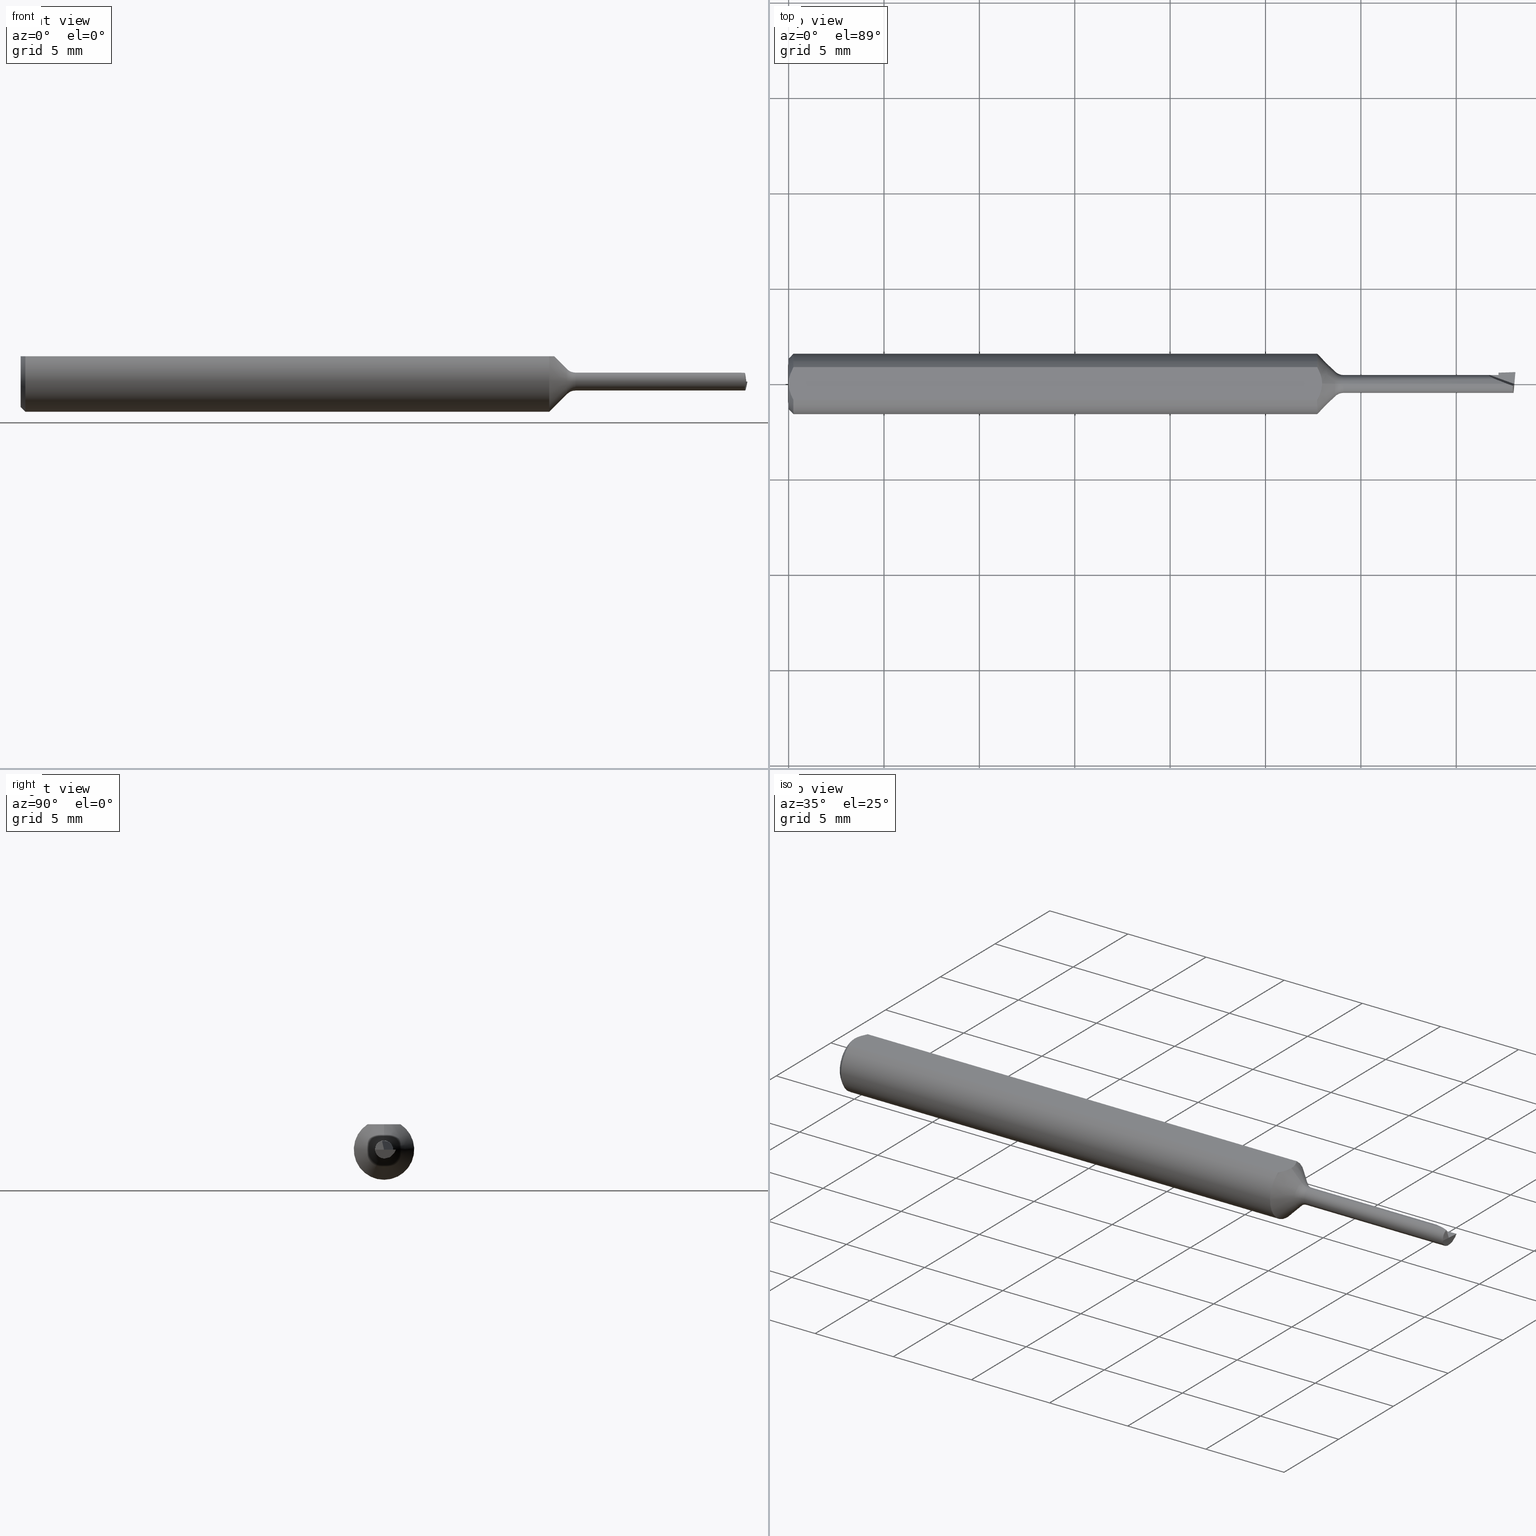
[diagram: canonical four-view strip — front | top / right | iso, engineering-drawing reading convention]
A machine part, canonical four-view strip (front | top / right | iso — engineering-drawing reading convention). The complete STEP part file that produces these views, byte-faithful:
ISO-10303-21;
HEADER;
FILE_DESCRIPTION (( 'STEP AP203' ),
    '1' );
FILE_NAME ('210058-MB045350.STEP',
    '2025-01-30T19:02:24',
    ( '' ),
    ( '' ),
    'SwSTEP 2.0',
    'SolidWorks 2024',
    '' );
FILE_SCHEMA (( 'CONFIG_CONTROL_DESIGN' ));
ENDSEC;

DATA;
#1 = COORDINATED_UNIVERSAL_TIME_OFFSET ( 8, 0, .BEHIND. ) ;
#2 = CARTESIAN_POINT ( 'NONE',  ( 0.000000000000000000, 0.000000000000000000, 0.000000000000000000 ) ) ;
#3 = CIRCLE ( 'NONE', #607, 0.02499999999999992159 ) ;
#4 = EDGE_LOOP ( 'NONE', ( #600, #554, #164, #559, #532 ) ) ;
#5 = EDGE_CURVE ( 'NONE', #185, #605, #112, .T. ) ;
#6 = DIRECTION ( 'NONE',  ( 0.000000000000000000, 0.000000000000000000, 1.000000000000000000 ) ) ;
#7 = DIRECTION ( 'NONE',  ( 1.000000000000000000, 0.000000000000000000, 0.000000000000000000 ) ) ;
#8 = ORIENTED_EDGE ( 'NONE', *, *, #378, .F. ) ;
#9 = CC_DESIGN_APPROVAL ( #469, ( #389 ) ) ;
#10 = CARTESIAN_POINT ( 'NONE',  ( 0.000000000000000000, 0.000000000000000000, -0.05235000000000033377 ) ) ;
#11 = CIRCLE ( 'NONE', #541, 0.02499999999999992159 ) ;
#12 = VERTEX_POINT ( 'NONE', #15 ) ;
#13 = APPROVAL_DATE_TIME ( #513, #102 ) ;
#14 = CARTESIAN_POINT ( 'NONE',  ( 1.495246590703220857, 2.265596578422608431E-18, -0.01850000000000004072 ) ) ;
#15 = CARTESIAN_POINT ( 'NONE',  ( 1.091150000000000286, 0.03386738844375220686, 0.05235000000000000070 ) ) ;
#16 = PERSON_AND_ORGANIZATION ( #228, #508 ) ;
#17 = EDGE_CURVE ( 'NONE', #448, #288, #462, .T. ) ;
#18 = ORIENTED_EDGE ( 'NONE', *, *, #280, .T. ) ;
#19 = CARTESIAN_POINT ( 'NONE',  ( 1.487126106453287244, -0.001380280959563401832, 0.01850000000000004072 ) ) ;
#20 = CARTESIAN_POINT ( 'NONE',  ( 1.145355339059327404, 2.265596578422613824E-18, -0.01850000000000008235 ) ) ;
#21 = CARTESIAN_POINT ( 'NONE',  ( 1.491015288325890253, -0.002751962849509072186, 0.01834616788330077283 ) ) ;
#22 = FACE_OUTER_BOUND ( 'NONE', #591, .T. ) ;
#23 = VERTEX_POINT ( 'NONE', #612 ) ;
#24 = LINE ( 'NONE', #328, #480 ) ;
#25 = PLANE ( 'NONE',  #491 ) ;
#26 = CARTESIAN_POINT ( 'NONE',  ( 1.091150000000000286, 0.03386738844375220686, 0.05235000000000000070 ) ) ;
#27 = CARTESIAN_POINT ( 'NONE',  ( 0.000000000000000000, 0.000000000000000000, 0.000000000000000000 ) ) ;
#28 = CARTESIAN_POINT ( 'NONE',  ( 0.000000000000000000, 0.000000000000000000, 0.05235000000000033377 ) ) ;
#29 = CC_DESIGN_APPROVAL ( #102, ( #540 ) ) ;
#30 = ORIENTED_EDGE ( 'NONE', *, *, #75, .T. ) ;
#31 = CARTESIAN_POINT ( 'NONE',  ( -1.070637973615595603E-15, -0.005965286321711177862, 0.05235000000000002152 ) ) ;
#32 = CC_DESIGN_DATE_AND_TIME_ASSIGNMENT ( #601, #563, ( #540 ) ) ;
#33 = ADVANCED_FACE ( 'NONE', ( #136 ), #293, .F. ) ;
#34 = ORIENTED_EDGE ( 'NONE', *, *, #622, .T. ) ;
#35 = CARTESIAN_POINT ( 'NONE',  ( 1.494465960141844629, -0.01288082332125575075, 0.01604535613734159663 ) ) ;
#36 = ORIENTED_EDGE ( 'NONE', *, *, #615, .F. ) ;
#37 = CARTESIAN_POINT ( 'NONE',  ( 0.001063697276021357847, 0.01189177144351693735, 0.05235000000000001458 ) ) ;
#38 = DIRECTION ( 'NONE',  ( 0.000000000000000000, 0.000000000000000000, -1.000000000000000000 ) ) ;
#39 = ORIENTED_EDGE ( 'NONE', *, *, #5, .T. ) ;
#40 = ADVANCED_FACE ( 'NONE', ( #623 ), #546, .T. ) ;
#41 = APPROVAL_DATE_TIME ( #338, #469 ) ;
#42 = CARTESIAN_POINT ( 'NONE',  ( 0.000000000000000000, -0.03386738844375220686, 0.05235000000000000070 ) ) ;
#43 = B_SPLINE_CURVE_WITH_KNOTS ( 'NONE', 3,
 ( #26, #625, #400, #639, #486, #296 ),
 .UNSPECIFIED., .F., .F.,
 ( 4, 2, 4 ),
 ( 0.002018861167849228706, 0.002467762199066008549, 0.002916663230282787959 ),
 .UNSPECIFIED. ) ;
#44 = ORIENTED_EDGE ( 'NONE', *, *, #399, .T. ) ;
#45 = DIRECTION ( 'NONE',  ( 1.000000000000000000, 0.000000000000000000, 0.000000000000000000 ) ) ;
#46 = CARTESIAN_POINT ( 'NONE',  ( 1.465000000000000080, 0.02204888731940269492, -0.01324462778634774400 ) ) ;
#47 = ORIENTED_EDGE ( 'NONE', *, *, #447, .T. ) ;
#48 = APPROVAL_DATE_TIME ( #493, #127 ) ;
#49 = VECTOR ( 'NONE', #182, 39.37007874015748143 ) ;
#50 = CARTESIAN_POINT ( 'NONE',  ( 1.496237987468385322, -0.01850000000000001990, 2.346737396167180672E-16 ) ) ;
#51 = ORIENTED_EDGE ( 'NONE', *, *, #137, .T. ) ;
#52 = CARTESIAN_POINT ( 'NONE',  ( 0.004671770759546769666, 0.02323517832780105236, 0.05235000000000002152 ) ) ;
#53 = FACE_OUTER_BOUND ( 'NONE', #82, .T. ) ;
#54 = ORIENTED_EDGE ( 'NONE', *, *, #180, .T. ) ;
#55 = DIRECTION ( 'NONE',  ( -0.1593925713349118589, -0.7010550863643484343, -0.6950653020299035756 ) ) ;
#56 = ORIENTED_EDGE ( 'NONE', *, *, #641, .T. ) ;
#57 =( BOUNDED_CURVE ( )  B_SPLINE_CURVE ( 3, ( #58, #507, #119, #363 ),
 .UNSPECIFIED., .F., .F. ) 
 B_SPLINE_CURVE_WITH_KNOTS ( ( 4, 4 ),
 ( 5.466285219765468995, 5.728084607564617237 ),
 .UNSPECIFIED. ) 
 CURVE ( )  GEOMETRIC_REPRESENTATION_ITEM ( )  RATIONAL_B_SPLINE_CURVE ( ( 1.000000000000000000, 0.9942965742492069214, 0.9942965742492069214, 1.000000000000000000 ) ) 
 REPRESENTATION_ITEM ( '' )  );
#58 = CARTESIAN_POINT ( 'NONE',  ( 1.495754431199804557, 0.004788152334396648772, -0.01786962778634774984 ) ) ;
#59 = CARTESIAN_POINT ( 'NONE',  ( 1.496684692676496731, 0.01221299988732022293, -0.01588014588061767429 ) ) ;
#60 = LOCAL_TIME ( 11, 2, 24.00000000000000000, #269 ) ;
#61 = ADVANCED_FACE ( 'NONE', ( #132 ), #325, .F. ) ;
#62 = DIRECTION ( 'NONE',  ( -1.000000000000000000, -0.000000000000000000, -0.000000000000000000 ) ) ;
#63 = ORIENTED_EDGE ( 'NONE', *, *, #223, .F. ) ;
#64 =( GEOMETRIC_REPRESENTATION_CONTEXT ( 3 ) GLOBAL_UNCERTAINTY_ASSIGNED_CONTEXT ( ( #116 ) ) GLOBAL_UNIT_ASSIGNED_CONTEXT ( ( #348, #303, #496 ) ) REPRESENTATION_CONTEXT ( 'NONE', 'WORKASPACE' ) );
#65 = CARTESIAN_POINT ( 'NONE',  ( 1.446998957439700861, 0.01850000000000003725, -4.483286445232968331E-18 ) ) ;
#66 = CARTESIAN_POINT ( 'NONE',  ( 1.101150000000000295, -1.477730522838633192E-21, 0.05235000000000001458 ) ) ;
#67 = PRODUCT ( '210058-MB045350', '210058-MB045350', '', ( #103 ) ) ;
#68 = DIRECTION ( 'NONE',  ( 0.000000000000000000, -0.4228298219691071225, -0.9062091048171900809 ) ) ;
#69 = CIRCLE ( 'NONE', #128, 0.01850000000000008235 ) ;
#70 = CARTESIAN_POINT ( 'NONE',  ( 1.465000000000000080, 0.01849999999999999908, 0.000000000000000000 ) ) ;
#71 = EDGE_LOOP ( 'NONE', ( #425, #618, #188, #97 ) ) ;
#72 = DIRECTION ( 'NONE',  ( 0.000000000000000000, 0.9659258262890682012, 0.2588190451025212391 ) ) ;
#73 = CC_DESIGN_SECURITY_CLASSIFICATION ( #540, ( #389 ) ) ;
#74 = CARTESIAN_POINT ( 'NONE',  ( 1.145355339059327404, 0.000000000000000000, 0.000000000000000000 ) ) ;
#75 = EDGE_CURVE ( 'NONE', #196, #495, #282, .T. ) ;
#76 = CARTESIAN_POINT ( 'NONE',  ( 0.01000000000000840841, -0.03386738844395137393, 0.05235000000000001458 ) ) ;
#77 = DIRECTION ( 'NONE',  ( 1.000000000000000000, 0.000000000000000000, 0.000000000000000000 ) ) ;
#78 = LINE ( 'NONE', #234, #139 ) ;
#79 = AXIS2_PLACEMENT_3D ( 'NONE', #619, #616, #467 ) ;
#80 = DIRECTION ( 'NONE',  ( -0.1627401076574647998, -0.4218543546513220388, -0.8919386530593645945 ) ) ;
#81 = ADVANCED_FACE ( 'NONE', ( #574 ), #417, .T. ) ;
#82 = EDGE_LOOP ( 'NONE', ( #167, #335, #337, #437, #492, #209 ) ) ;
#83 = DIRECTION ( 'NONE',  ( -1.000000000000000000, -0.000000000000000000, -0.000000000000000000 ) ) ;
#84 = VERTEX_POINT ( 'NONE', #219 ) ;
#85 = CARTESIAN_POINT ( 'NONE',  ( 0.000000000000000000, 0.000000000000000000, 0.05235000000000033377 ) ) ;
#86 = CARTESIAN_POINT ( 'NONE',  ( 1.145355339059327404, 0.000000000000000000, 0.04350000000000000394 ) ) ;
#87 = ADVANCED_FACE ( 'NONE', ( #22 ), #189, .T. ) ;
#88 = EDGE_LOOP ( 'NONE', ( #30, #512, #598, #465 ) ) ;
#89 = CIRCLE ( 'NONE', #432, 0.05235000000000033377 ) ;
#90 = B_SPLINE_CURVE_WITH_KNOTS ( 'NONE', 3,
 ( #66, #626, #568, #181, #276, #472 ),
 .UNSPECIFIED., .F., .F.,
 ( 4, 2, 4 ),
 ( 0.002916663230282787959, 0.003365861382119245907, 0.003815059533955703856 ),
 .UNSPECIFIED. ) ;
#91 = FACE_OUTER_BOUND ( 'NONE', #88, .T. ) ;
#92 = ORIENTED_EDGE ( 'NONE', *, *, #199, .F. ) ;
#93 = CC_DESIGN_DATE_AND_TIME_ASSIGNMENT ( #254, #385, ( #216 ) ) ;
#94 = PERSON_AND_ORGANIZATION_ROLE ( 'creator' ) ;
#95 = CARTESIAN_POINT ( 'NONE',  ( 1.127677669529663751, 0.000000000000000000, 0.000000000000000000 ) ) ;
#96 = CONICAL_SURFACE ( 'NONE', #384, 0.05235000000000033377, 0.7853981633974376209 ) ;
#97 = ORIENTED_EDGE ( 'NONE', *, *, #407, .F. ) ;
#98 = LENGTH_MEASURE_WITH_UNIT ( LENGTH_MEASURE( 0.02539999999999999897 ), #246 );
#99 = LINE ( 'NONE', #42, #351 ) ;
#100 = ORIENTED_EDGE ( 'NONE', *, *, #237, .T. ) ;
#101 =( BOUNDED_CURVE ( )  B_SPLINE_CURVE ( 3, ( #406, #267, #459, #65 ),
 .UNSPECIFIED., .F., .F. ) 
 B_SPLINE_CURVE_WITH_KNOTS ( ( 4, 4 ),
 ( 4.990162771046300350, 6.560959097841199572 ),
 .UNSPECIFIED. ) 
 CURVE ( )  GEOMETRIC_REPRESENTATION_ITEM ( )  RATIONAL_B_SPLINE_CURVE ( ( 1.000000000000000000, 0.8047378541243643824, 0.8047378541243643824, 1.000000000000000000 ) ) 
 REPRESENTATION_ITEM ( '' )  );
#102 = APPROVAL ( #158, 'UNSPECIFIED' ) ;
#103 = MECHANICAL_CONTEXT ( 'NONE', #594, 'mechanical' ) ;
#104 = AXIS2_PLACEMENT_3D ( 'NONE', #203, #339, #149 ) ;
#105 = DIRECTION ( 'NONE',  ( 4.188400406518391045E-17, 1.150753554054429375E-16, -1.000000000000000000 ) ) ;
#106 = EDGE_LOOP ( 'NONE', ( #295, #253, #244, #642, #39, #241, #341 ) ) ;
#107 = CARTESIAN_POINT ( 'NONE',  ( 1.497855625440970062, -1.031336641982391536E-05, 2.046381266477860700E-16 ) ) ;
#108 = VECTOR ( 'NONE', #266, 39.37007874015748854 ) ;
#109 = EDGE_LOOP ( 'NONE', ( #92, #608, #54, #388 ) ) ;
#110 = VECTOR ( 'NONE', #526, 39.37007874015748143 ) ;
#111 = CARTESIAN_POINT ( 'NONE',  ( 1.145355339059327404, 0.000000000000000000, 0.000000000000000000 ) ) ;
#112 = LINE ( 'NONE', #59, #108 ) ;
#113 = EDGE_CURVE ( 'NONE', #635, #405, #202, .T. ) ;
#114 = LOCAL_TIME ( 11, 2, 24.00000000000000000, #1 ) ;
#115 = SHAPE_DEFINITION_REPRESENTATION ( #569, #369 ) ;
#116 = UNCERTAINTY_MEASURE_WITH_UNIT (LENGTH_MEASURE( 1.000000000000000082E-05 ), #348, 'distance_accuracy_value', 'NONE');
#117 = CARTESIAN_POINT ( 'NONE',  ( 0.7984117945685827999, 3.886970232290855934E-33, -3.377760788655366709E-17 ) ) ;
#118 = CARTESIAN_POINT ( 'NONE',  ( 1.494709121747062275, -0.01850000000000016562, -0.01083704909609766072 ) ) ;
#119 = CARTESIAN_POINT ( 'NONE',  ( 1.495388239854692269, 0.001619057209963984268, -0.01850000000000003378 ) ) ;
#120 = DIRECTION ( 'NONE',  ( 0.9993908270190960952, 0.03489949670248750080, -0.000000000000000000 ) ) ;
#121 = TOROIDAL_SURFACE ( 'NONE', #258, 0.04350000000000000394, 0.02499999999999992159 ) ;
#122 = CARTESIAN_POINT ( 'NONE',  ( 1.460024366919236094, 0.02310402013190050036, -1.572938430745744944E-18 ) ) ;
#123 = ADVANCED_FACE ( 'NONE', ( #317 ), #577, .F. ) ;
#124 = PLANE ( 'NONE',  #324 ) ;
#125 = ORIENTED_EDGE ( 'NONE', *, *, #631, .F. ) ;
#126 = DIRECTION ( 'NONE',  ( -1.000000000000000000, -0.000000000000000000, -0.000000000000000000 ) ) ;
#127 = APPROVAL ( #201, 'UNSPECIFIED' ) ;
#128 = AXIS2_PLACEMENT_3D ( 'NONE', #545, #494, #251 ) ;
#129 = DIRECTION ( 'NONE',  ( -1.000000000000000000, -0.000000000000000000, -0.000000000000000000 ) ) ;
#130 = ORIENTED_EDGE ( 'NONE', *, *, #570, .T. ) ;
#131 = LINE ( 'NONE', #138, #416 ) ;
#132 = FACE_OUTER_BOUND ( 'NONE', #444, .T. ) ;
#133 = CIRCLE ( 'NONE', #525, 0.01850000000000008235 ) ;
#134 = ORIENTED_EDGE ( 'NONE', *, *, #231, .F. ) ;
#135 = DIRECTION ( 'NONE',  ( 0.000000000000000000, 0.000000000000000000, 1.000000000000000000 ) ) ;
#136 = FACE_OUTER_BOUND ( 'NONE', #106, .T. ) ;
#137 = EDGE_CURVE ( 'NONE', #150, #376, #133, .T. ) ;
#138 = CARTESIAN_POINT ( 'NONE',  ( 2.815371162439451627E-33, 0.01850000000000004072, -6.508939666095427711E-17 ) ) ;
#139 = VECTOR ( 'NONE', #236, 39.37007874015748143 ) ;
#140 = ORIENTED_EDGE ( 'NONE', *, *, #418, .F. ) ;
#141 = LINE ( 'NONE', #575, #411 ) ;
#142 = ORIENTED_EDGE ( 'NONE', *, *, #299, .T. ) ;
#143 = EDGE_CURVE ( 'NONE', #23, #194, #287, .T. ) ;
#144 = ORIENTED_EDGE ( 'NONE', *, *, #290, .T. ) ;
#145 = CALENDAR_DATE ( 2025, 30, 1 ) ;
#146 = LINE ( 'NONE', #46, #274 ) ;
#147 = VERTEX_POINT ( 'NONE', #424 ) ;
#148 = CARTESIAN_POINT ( 'NONE',  ( -1.099542139246802830E-15, 0.005954997531773979953, 0.05235000000000002152 ) ) ;
#149 = DIRECTION ( 'NONE',  ( 0.000000000000000000, 0.000000000000000000, 1.000000000000000000 ) ) ;
#150 = VERTEX_POINT ( 'NONE', #20 ) ;
#151 = DIRECTION ( 'NONE',  ( 1.000000000000000000, 0.000000000000000000, 0.000000000000000000 ) ) ;
#152 = CARTESIAN_POINT ( 'NONE',  ( 1.465000000000000080, 0.02001162981448263017, -0.006999999999999996676 ) ) ;
#153 = EDGE_LOOP ( 'NONE', ( #332, #547, #36, #585, #298, #347 ) ) ;
#154 = EDGE_CURVE ( 'NONE', #84, #356, #90, .T. ) ;
#155 =( BOUNDED_CURVE ( )  B_SPLINE_CURVE ( 3, ( #176, #35, #370, #230 ),
 .UNSPECIFIED., .F., .F. ) 
 B_SPLINE_CURVE_WITH_KNOTS ( ( 4, 4 ),
 ( 5.951448363857583246, 7.298880934359467609 ),
 .UNSPECIFIED. ) 
 CURVE ( )  GEOMETRIC_REPRESENTATION_ITEM ( )  RATIONAL_B_SPLINE_CURVE ( ( 1.000000000000000000, 0.8543389983611018312, 0.8543389983611018312, 1.000000000000000000 ) ) 
 REPRESENTATION_ITEM ( '' )  );
#156 = LINE ( 'NONE', #435, #305 ) ;
#157 = ORIENTED_EDGE ( 'NONE', *, *, #340, .F. ) ;
#158 = APPROVAL_STATUS ( 'not_yet_approved' ) ;
#159 = DIRECTION ( 'NONE',  ( -1.000000000000000000, -0.000000000000000000, -0.000000000000000000 ) ) ;
#160 = EDGE_LOOP ( 'NONE', ( #140, #259, #433, #173 ) ) ;
#161 = FACE_OUTER_BOUND ( 'NONE', #343, .T. ) ;
#162 = AXIS2_PLACEMENT_3D ( 'NONE', #70, #617, #272 ) ;
#163 = ADVANCED_FACE ( 'NONE', ( #374 ), #25, .F. ) ;
#164 = ORIENTED_EDGE ( 'NONE', *, *, #399, .F. ) ;
#165 = CARTESIAN_POINT ( 'NONE',  ( 0.000000000000000000, 0.000000000000000000, 0.000000000000000000 ) ) ;
#166 = CC_DESIGN_PERSON_AND_ORGANIZATION_ASSIGNMENT ( #441, #552, ( #67 ) ) ;
#167 = ORIENTED_EDGE ( 'NONE', *, *, #378, .T. ) ;
#168 = VECTOR ( 'NONE', #366, 39.37007874015748854 ) ;
#169 = CARTESIAN_POINT ( 'NONE',  ( 1.405776579097274936, 0.03350371870230225285, -4.483286445232968331E-18 ) ) ;
#170 = CARTESIAN_POINT ( 'NONE',  ( 0.009999999999999887451, 0.000000000000000000, 0.000000000000000000 ) ) ;
#171 = LINE ( 'NONE', #573, #499 ) ;
#172 = DIRECTION ( 'NONE',  ( 0.9396926207859126468, -0.3420201433256567780, 0.000000000000000000 ) ) ;
#173 = ORIENTED_EDGE ( 'NONE', *, *, #143, .F. ) ;
#174 = CARTESIAN_POINT ( 'NONE',  ( 1.483333815684383605, 0.000000000000000000, 0.01850000000000004072 ) ) ;
#175 = CARTESIAN_POINT ( 'NONE',  ( 1.460138284237282980, 0.01984185495899845955, -0.006999999999999996676 ) ) ;
#176 = CARTESIAN_POINT ( 'NONE',  ( 1.494952902551172302, -0.004097954674002875219, 0.01804042038007484111 ) ) ;
#177 = AXIS2_PLACEMENT_3D ( 'NONE', #165, #264, #261 ) ;
#178 = DIRECTION ( 'NONE',  ( 0.000000000000000000, 0.000000000000000000, -1.000000000000000000 ) ) ;
#179 = CARTESIAN_POINT ( 'NONE',  ( 0.000000000000000000, 0.000000000000000000, 0.000000000000000000 ) ) ;
#180 = EDGE_CURVE ( 'NONE', #588, #376, #3, .T. ) ;
#181 = CARTESIAN_POINT ( 'NONE',  ( 1.096482645487524055, -0.02321992653401847018, 0.05235000000000001458 ) ) ;
#182 = DIRECTION ( 'NONE',  ( -0.7071067811865477948, 0.000000000000000000, 0.7071067811865472397 ) ) ;
#183 = FACE_OUTER_BOUND ( 'NONE', #315, .T. ) ;
#184 = VECTOR ( 'NONE', #346, 39.37007874015748854 ) ;
#185 = VERTEX_POINT ( 'NONE', #420 ) ;
#186 = ADVANCED_FACE ( 'NONE', ( #572 ), #124, .T. ) ;
#187 = CARTESIAN_POINT ( 'NONE',  ( 1.500296196177055563, 0.02788553779562382914, 3.030643867971292100E-16 ) ) ;
#188 = ORIENTED_EDGE ( 'NONE', *, *, #447, .F. ) ;
#189 = CONICAL_SURFACE ( 'NONE', #558, 0.02582233047033644438, 0.7853981633974479459 ) ;
#190 = CALENDAR_DATE ( 2025, 30, 1 ) ;
#191 = ADVANCED_FACE ( 'NONE', ( #597 ), #583, .T. ) ;
#192 = AXIS2_PLACEMENT_3D ( 'NONE', #422, #473, #419 ) ;
#193 = LINE ( 'NONE', #386, #604 ) ;
#194 = VERTEX_POINT ( 'NONE', #390 ) ;
#195 = CARTESIAN_POINT ( 'NONE',  ( 1.460138284237282980, 0.01984185495899845955, -0.006999999999999996676 ) ) ;
#196 = VERTEX_POINT ( 'NONE', #152 ) ;
#197 = APPLICATION_PROTOCOL_DEFINITION ( 'international standard', 'config_control_design', 1994, #594 ) ;
#198 = CARTESIAN_POINT ( 'NONE',  ( 1.091150000000000286, 0.000000000000000000, 0.000000000000000000 ) ) ;
#199 = EDGE_CURVE ( 'NONE', #147, #150, #11, .T. ) ;
#200 = VERTEX_POINT ( 'NONE', #107 ) ;
#201 = APPROVAL_STATUS ( 'not_yet_approved' ) ;
#202 = CIRCLE ( 'NONE', #278, 0.05235000000000033377 ) ;
#203 = CARTESIAN_POINT ( 'NONE',  ( 1.127677669529663751, 0.000000000000000000, 0.000000000000000000 ) ) ;
#204 = CIRCLE ( 'NONE', #637, 0.06235000000000000264 ) ;
#205 = ORIENTED_EDGE ( 'NONE', *, *, #498, .T. ) ;
#206 = CALENDAR_DATE ( 2025, 30, 1 ) ;
#207 = DIRECTION ( 'NONE',  ( 0.000000000000000000, 0.000000000000000000, 1.000000000000000000 ) ) ;
#208 = LOCAL_TIME ( 11, 2, 24.00000000000000000, #250 ) ;
#209 = ORIENTED_EDGE ( 'NONE', *, *, #283, .T. ) ;
#210 = PERSON_AND_ORGANIZATION_ROLE ( 'classification_officer' ) ;
#211 = VECTOR ( 'NONE', #55, 39.37007874015748143 ) ;
#212 = EDGE_CURVE ( 'NONE', #588, #147, #565, .T. ) ;
#213 = CYLINDRICAL_SURFACE ( 'NONE', #177, 0.01850000000000004072 ) ;
#214 = EDGE_LOOP ( 'NONE', ( #238, #312, #302 ) ) ;
#215 = CARTESIAN_POINT ( 'NONE',  ( 1.497591963102740786, 0.01621548884024825304, -0.01193127157655284563 ) ) ;
#216 = PRODUCT_DEFINITION ( 'UNKNOWN', '', #389, #610 ) ;
#217 = APPROVAL_ROLE ( '' ) ;
#218 = CARTESIAN_POINT ( 'NONE',  ( 1.091150000000000286, -0.03386738844375220686, 0.05235000000000000070 ) ) ;
#219 = CARTESIAN_POINT ( 'NONE',  ( 1.101150000000000295, -1.477730522838633192E-21, 0.05235000000000001458 ) ) ;
#220 = AXIS2_PLACEMENT_3D ( 'NONE', #122, #318, #68 ) ;
#221 = CARTESIAN_POINT ( 'NONE',  ( 1.483333815684383605, 0.000000000000000000, 0.01850000000000004072 ) ) ;
#222 = DIRECTION ( 'NONE',  ( -1.000000000000000000, -0.000000000000000000, -0.000000000000000000 ) ) ;
#223 = EDGE_CURVE ( 'NONE', #356, #440, #99, .T. ) ;
#224 = LINE ( 'NONE', #415, #49 ) ;
#225 = DIRECTION ( 'NONE',  ( 0.000000000000000000, 0.000000000000000000, 1.000000000000000000 ) ) ;
#226 = AXIS2_PLACEMENT_3D ( 'NONE', #426, #584, #135 ) ;
#227 = PLANE ( 'NONE',  #192 ) ;
#228 = PERSON ( 'UNSPECIFIED', 'UNSPECIFIED', 'UNSPECIFIED', ('UNSPECIFIED'), ('UNSPECIFIED'), ('UNSPECIFIED') ) ;
#229 = DIRECTION ( 'NONE',  ( 0.000000000000000000, -1.000000000000000000, 0.000000000000000000 ) ) ;
#230 = CARTESIAN_POINT ( 'NONE',  ( 1.496237987468385322, -0.01850000000000001990, 2.346737396167180672E-16 ) ) ;
#231 = EDGE_CURVE ( 'NONE', #539, #356, #240, .T. ) ;
#232 = CARTESIAN_POINT ( 'NONE',  ( 1.127677669529663751, 0.000000000000000000, 0.000000000000000000 ) ) ;
#233 = VERTEX_POINT ( 'NONE', #307 ) ;
#234 = CARTESIAN_POINT ( 'NONE',  ( 0.000000000000000000, 0.000000000000000000, 0.01850000000000004072 ) ) ;
#235 = AXIS2_PLACEMENT_3D ( 'NONE', #614, #129, #474 ) ;
#236 = DIRECTION ( 'NONE',  ( -1.000000000000000000, -0.000000000000000000, -0.000000000000000000 ) ) ;
#237 = EDGE_CURVE ( 'NONE', #405, #635, #89, .T. ) ;
#238 = ORIENTED_EDGE ( 'NONE', *, *, #483, .T. ) ;
#239 = CARTESIAN_POINT ( 'NONE',  ( 1.498722803693174566, 0.02118925606886698162, -0.006999999999999996676 ) ) ;
#240 = CIRCLE ( 'NONE', #380, 0.06235000000000000264 ) ;
#241 = ORIENTED_EDGE ( 'NONE', *, *, #367, .F. ) ;
#242 = CARTESIAN_POINT ( 'NONE',  ( 0.000000000000000000, 0.000000000000000000, 0.000000000000000000 ) ) ;
#243 = CARTESIAN_POINT ( 'NONE',  ( 1.145355339059327404, 5.327213576290986981E-18, -0.04350000000000000394 ) ) ;
#244 = ORIENTED_EDGE ( 'NONE', *, *, #17, .F. ) ;
#245 = AXIS2_PLACEMENT_3D ( 'NONE', #170, #329, #361 ) ;
#246 =( LENGTH_UNIT ( ) NAMED_UNIT ( * ) SI_UNIT ( $, .METRE. ) );
#247 = LINE ( 'NONE', #438, #184 ) ;
#248 = EDGE_LOOP ( 'NONE', ( #543, #484, #157, #450, #47, #457, #551, #403 ) ) ;
#249 = PRODUCT_RELATED_PRODUCT_CATEGORY ( 'detail', '', ( #67 ) ) ;
#250 = COORDINATED_UNIVERSAL_TIME_OFFSET ( 8, 0, .BEHIND. ) ;
#251 = DIRECTION ( 'NONE',  ( 0.000000000000000000, 0.000000000000000000, 1.000000000000000000 ) ) ;
#252 = VECTOR ( 'NONE', #606, 39.37007874015748143 ) ;
#253 = ORIENTED_EDGE ( 'NONE', *, *, #576, .T. ) ;
#254 = DATE_AND_TIME ( #206, #208 ) ;
#255 = CARTESIAN_POINT ( 'NONE',  ( 1.418295385203593328, 0.06789885579794455173, -9.160938846980685724E-22 ) ) ;
#256 = ORIENTED_EDGE ( 'NONE', *, *, #75, .F. ) ;
#257 = DIRECTION ( 'NONE',  ( -1.000000000000000000, -0.000000000000000000, -0.000000000000000000 ) ) ;
#258 = AXIS2_PLACEMENT_3D ( 'NONE', #431, #83, #281 ) ;
#259 = ORIENTED_EDGE ( 'NONE', *, *, #113, .F. ) ;
#260 = EDGE_CURVE ( 'NONE', #408, #196, #156, .T. ) ;
#261 = DIRECTION ( 'NONE',  ( 0.000000000000000000, 0.000000000000000000, 1.000000000000000000 ) ) ;
#262 = VERTEX_POINT ( 'NONE', #353 ) ;
#263 = AXIS2_PLACEMENT_3D ( 'NONE', #95, #301, #556 ) ;
#264 = DIRECTION ( 'NONE',  ( -1.000000000000000000, -0.000000000000000000, -0.000000000000000000 ) ) ;
#265 =( BOUNDED_CURVE ( )  B_SPLINE_CURVE ( 3, ( #463, #21, #19, #221 ),
 .UNSPECIFIED., .F., .T. ) 
 B_SPLINE_CURVE_WITH_KNOTS ( ( 4, 4 ),
 ( 4.766799014753298813, 4.990162771046300350 ),
 .UNSPECIFIED. ) 
 CURVE ( )  GEOMETRIC_REPRESENTATION_ITEM ( )  RATIONAL_B_SPLINE_CURVE ( ( 1.000000000000000000, 0.9958467056734143785, 0.9958467056734143785, 1.000000000000000000 ) ) 
 REPRESENTATION_ITEM ( '' )  );
#266 = DIRECTION ( 'NONE',  ( 0.1201445221440181205, 0.9589290576775757469, 0.2569442666034444378 ) ) ;
#267 = CARTESIAN_POINT ( 'NONE',  ( 1.453559267999332549, 0.01083704909609773184, 0.01850000000000007888 ) ) ;
#268 = ORIENTED_EDGE ( 'NONE', *, *, #237, .F. ) ;
#269 = COORDINATED_UNIVERSAL_TIME_OFFSET ( 8, 0, .BEHIND. ) ;
#270 = PLANE ( 'NONE',  #220 ) ;
#271 = EDGE_CURVE ( 'NONE', #185, #233, #394, .T. ) ;
#272 = DIRECTION ( 'NONE',  ( 0.000000000000000000, 0.000000000000000000, -1.000000000000000000 ) ) ;
#273 = ORIENTED_EDGE ( 'NONE', *, *, #593, .F. ) ;
#274 = VECTOR ( 'NONE', #550, 39.37007874015747433 ) ;
#275 = FACE_OUTER_BOUND ( 'NONE', #489, .T. ) ;
#276 = CARTESIAN_POINT ( 'NONE',  ( 1.094001488371463271, -0.02861778674340262688, 0.05235000000000002152 ) ) ;
#277 = CARTESIAN_POINT ( 'NONE',  ( 1.091150000000000286, 7.635672792683746671E-18, -0.06235000000000000264 ) ) ;
#278 = AXIS2_PLACEMENT_3D ( 'NONE', #27, #410, #178 ) ;
#279 = DIRECTION ( 'NONE',  ( 0.000000000000000000, 0.000000000000000000, 1.000000000000000000 ) ) ;
#280 = EDGE_CURVE ( 'NONE', #196, #430, #247, .T. ) ;
#281 = DIRECTION ( 'NONE',  ( 0.000000000000000000, 0.000000000000000000, 1.000000000000000000 ) ) ;
#282 = LINE ( 'NONE', #175, #427 ) ;
#283 = EDGE_CURVE ( 'NONE', #194, #12, #193, .T. ) ;
#284 = DIRECTION ( 'NONE',  ( -0.7071067811865477948, 8.659560562354929160E-17, -0.7071067811865472397 ) ) ;
#285 = AXIS2_PLACEMENT_3D ( 'NONE', #2, #446, #640 ) ;
#286 = FACE_OUTER_BOUND ( 'NONE', #582, .T. ) ;
#287 = CIRCLE ( 'NONE', #245, 0.06235000000000000264 ) ;
#288 = VERTEX_POINT ( 'NONE', #50 ) ;
#289 = DIRECTION ( 'NONE',  ( 0.000000000000000000, 0.000000000000000000, -1.000000000000000000 ) ) ;
#290 = EDGE_CURVE ( 'NONE', #233, #430, #146, .T. ) ;
#291 = EDGE_LOOP ( 'NONE', ( #580, #18, #627, #503, #309 ) ) ;
#292 = PERSON_AND_ORGANIZATION ( #228, #508 ) ;
#293 = PLANE ( 'NONE',  #436 ) ;
#294 = VECTOR ( 'NONE', #644, 39.37007874015748143 ) ;
#295 = ORIENTED_EDGE ( 'NONE', *, *, #561, .T. ) ;
#296 = CARTESIAN_POINT ( 'NONE',  ( 1.101150000000000295, -1.477730522838633192E-21, 0.05235000000000001458 ) ) ;
#297 = DIRECTION ( 'NONE',  ( 0.000000000000000000, -0.7073221891495888869, -0.7068913075831623205 ) ) ;
#298 = ORIENTED_EDGE ( 'NONE', *, *, #506, .T. ) ;
#299 = EDGE_CURVE ( 'NONE', #147, #588, #402, .T. ) ;
#300 = CARTESIAN_POINT ( 'NONE',  ( 0.007185421074056205608, 0.02868573718286560742, 0.05235000000000002152 ) ) ;
#301 = DIRECTION ( 'NONE',  ( -1.000000000000000000, -0.000000000000000000, -0.000000000000000000 ) ) ;
#302 = ORIENTED_EDGE ( 'NONE', *, *, #576, .F. ) ;
#303 =( NAMED_UNIT ( * ) PLANE_ANGLE_UNIT ( ) SI_UNIT ( $, .RADIAN. ) );
#304 = PLANE ( 'NONE',  #320 ) ;
#305 = VECTOR ( 'NONE', #636, 39.37007874015748854 ) ;
#306 = ORIENTED_EDGE ( 'NONE', *, *, #260, .F. ) ;
#307 = CARTESIAN_POINT ( 'NONE',  ( 1.465000000000000080, 0.004788152334396648772, -0.01786962778634774984 ) ) ;
#308 = ADVANCED_FACE ( 'NONE', ( #53 ), #542, .T. ) ;
#309 = ORIENTED_EDGE ( 'NONE', *, *, #414, .T. ) ;
#310 = SECURITY_CLASSIFICATION_LEVEL ( 'unclassified' ) ;
#311 = DIRECTION ( 'NONE',  ( -1.000000000000000000, -0.000000000000000000, -0.000000000000000000 ) ) ;
#312 = ORIENTED_EDGE ( 'NONE', *, *, #615, .T. ) ;
#313 = DIRECTION ( 'NONE',  ( 0.000000000000000000, 0.000000000000000000, 1.000000000000000000 ) ) ;
#314 = AXIS2_PLACEMENT_3D ( 'NONE', #242, #6, #151 ) ;
#315 = EDGE_LOOP ( 'NONE', ( #595, #56, #205, #63, #352, #398 ) ) ;
#316 = ORIENTED_EDGE ( 'NONE', *, *, #299, .F. ) ;
#317 = FACE_OUTER_BOUND ( 'NONE', #291, .T. ) ;
#318 = DIRECTION ( 'NONE',  ( 0.03162968562512429027, -0.9057556888204039147, 0.4226182617407007736 ) ) ;
#319 = CARTESIAN_POINT ( 'NONE',  ( 1.491155917282976695, 0.03518992960932577213, 0.06931876481191026618 ) ) ;
#320 = AXIS2_PLACEMENT_3D ( 'NONE', #195, #497, #297 ) ;
#321 = CARTESIAN_POINT ( 'NONE',  ( 1.446998957439700861, 0.01850000000000003725, -4.483286445232968331E-18 ) ) ;
#322 = DIRECTION ( 'NONE',  ( -1.000000000000000000, -0.000000000000000000, -0.000000000000000000 ) ) ;
#323 = CARTESIAN_POINT ( 'NONE',  ( 1.465000000000000080, 0.01850000000000004072, -6.508939666095427711E-17 ) ) ;
#324 = AXIS2_PLACEMENT_3D ( 'NONE', #319, #522, #468 ) ;
#325 = PLANE ( 'NONE',  #470 ) ;
#326 = ADVANCED_FACE ( 'NONE', ( #91 ), #304, .F. ) ;
#327 = ORIENTED_EDGE ( 'NONE', *, *, #593, .T. ) ;
#328 = CARTESIAN_POINT ( 'NONE',  ( 1.127677669529663751, 3.162323435702269328E-18, -0.02582233047033644438 ) ) ;
#329 = DIRECTION ( 'NONE',  ( 1.000000000000000000, 0.000000000000000000, 0.000000000000000000 ) ) ;
#330 = PLANE ( 'NONE',  #620 ) ;
#331 = AXIS2_PLACEMENT_3D ( 'NONE', #111, #62, #313 ) ;
#332 = ORIENTED_EDGE ( 'NONE', *, *, #354, .F. ) ;
#333 = CARTESIAN_POINT ( 'NONE',  ( 1.496688055231696124, 0.01223983799721654366, -0.01587295463074458318 ) ) ;
#334 = ADVANCED_FACE ( 'NONE', ( #490 ), #342, .F. ) ;
#335 = ORIENTED_EDGE ( 'NONE', *, *, #231, .T. ) ;
#336 = APPROVAL_ROLE ( '' ) ;
#337 = ORIENTED_EDGE ( 'NONE', *, *, #223, .T. ) ;
#338 = DATE_AND_TIME ( #145, #114 ) ;
#339 = DIRECTION ( 'NONE',  ( -1.000000000000000000, -0.000000000000000000, -0.000000000000000000 ) ) ;
#340 = EDGE_CURVE ( 'NONE', #376, #150, #69, .T. ) ;
#341 = ORIENTED_EDGE ( 'NONE', *, *, #570, .F. ) ;
#342 = PLANE ( 'NONE',  #643 ) ;
#343 = EDGE_LOOP ( 'NONE', ( #316, #381, #51, #630 ) ) ;
#344 = AXIS2_PLACEMENT_3D ( 'NONE', #368, #621, #225 ) ;
#345 = APPLICATION_PROTOCOL_DEFINITION ( 'international standard', 'config_control_design', 1994, #365 ) ;
#346 = DIRECTION ( 'NONE',  ( 0.000000000000000000, -0.7073221891495888869, -0.7068913075831623205 ) ) ;
#347 = ORIENTED_EDGE ( 'NONE', *, *, #137, .F. ) ;
#348 =( CONVERSION_BASED_UNIT ( 'INCH', #98 ) LENGTH_UNIT ( ) NAMED_UNIT ( #536 ) );
#349 = EDGE_CURVE ( 'NONE', #605, #430, #553, .T. ) ;
#350 = CARTESIAN_POINT ( 'NONE',  ( 0.000000000000000000, 0.000000000000000000, 0.000000000000000000 ) ) ;
#351 = VECTOR ( 'NONE', #599, 39.37007874015748143 ) ;
#352 = ORIENTED_EDGE ( 'NONE', *, *, #154, .F. ) ;
#353 = CARTESIAN_POINT ( 'NONE',  ( 1.494952902551172302, -0.004097954674002875219, 0.01804042038007484111 ) ) ;
#354 = EDGE_CURVE ( 'NONE', #448, #150, #412, .T. ) ;
#355 = VERTEX_POINT ( 'NONE', #174 ) ;
#356 = VERTEX_POINT ( 'NONE', #218 ) ;
#357 = CARTESIAN_POINT ( 'NONE',  ( 1.145355339059327404, 0.000000000000000000, 0.01850000000000008235 ) ) ;
#358 = CARTESIAN_POINT ( 'NONE',  ( 1.495246590703220857, 2.265596578422608431E-18, -0.01850000000000004072 ) ) ;
#359 = CIRCLE ( 'NONE', #79, 0.06235000000000000264 ) ;
#360 = CARTESIAN_POINT ( 'NONE',  ( 1.465000000000000080, 0.02327777306778930702, -1.572938430745744944E-18 ) ) ;
#361 = DIRECTION ( 'NONE',  ( 0.000000000000000000, 0.000000000000000000, -1.000000000000000000 ) ) ;
#362 = PERSON_AND_ORGANIZATION ( #228, #508 ) ;
#363 = CARTESIAN_POINT ( 'NONE',  ( 1.495246590703220857, 2.265596578422608431E-18, -0.01850000000000004072 ) ) ;
#364 = DIRECTION ( 'NONE',  ( 0.000000000000000000, 0.000000000000000000, -1.000000000000000000 ) ) ;
#365 = APPLICATION_CONTEXT ( 'configuration controlled 3d designs of mechanical parts and assemblies' ) ;
#366 = DIRECTION ( 'NONE',  ( 0.9993908270190957621, 0.03489949670250171165, 4.587456144808678678E-17 ) ) ;
#367 = EDGE_CURVE ( 'NONE', #495, #605, #571, .T. ) ;
#368 = CARTESIAN_POINT ( 'NONE',  ( 1.127677669529663751, 0.000000000000000000, 0.000000000000000000 ) ) ;
#369 = ADVANCED_BREP_SHAPE_REPRESENTATION ( '210058-MB045350', ( #518, #314 ), #64 ) ;
#370 = CARTESIAN_POINT ( 'NONE',  ( 1.494967355536287235, -0.01849999999999996092, 0.009006612182587480503 ) ) ;
#371 = ADVANCED_FACE ( 'NONE', ( #611 ), #213, .T. ) ;
#372 = CARTESIAN_POINT ( 'NONE',  ( 0.000000000000000000, 0.000000000000000000, 0.000000000000000000 ) ) ;
#373 = CARTESIAN_POINT ( 'NONE',  ( 0.004679365186825695105, -0.02325953974091124477, 0.05235000000000000764 ) ) ;
#374 = FACE_OUTER_BOUND ( 'NONE', #71, .T. ) ;
#375 = CIRCLE ( 'NONE', #226, 0.01849999999999999908 ) ;
#376 = VERTEX_POINT ( 'NONE', #357 ) ;
#377 = DIRECTION ( 'NONE',  ( 1.000000000000000000, 0.000000000000000000, 0.000000000000000000 ) ) ;
#378 = EDGE_CURVE ( 'NONE', #12, #539, #359, .T. ) ;
#379 = DIRECTION ( 'NONE',  ( 0.000000000000000000, 0.2588190451025212391, -0.9659258262890682012 ) ) ;
#380 = AXIS2_PLACEMENT_3D ( 'NONE', #198, #159, #590 ) ;
#381 = ORIENTED_EDGE ( 'NONE', *, *, #199, .T. ) ;
#382 = CARTESIAN_POINT ( 'NONE',  ( 0.007163450771416182694, -0.02864528976632487248, 0.05235000000000001458 ) ) ;
#383 = ORIENTED_EDGE ( 'NONE', *, *, #477, .T. ) ;
#384 = AXIS2_PLACEMENT_3D ( 'NONE', #179, #633, #289 ) ;
#385 = DATE_TIME_ROLE ( 'creation_date' ) ;
#386 = CARTESIAN_POINT ( 'NONE',  ( 0.000000000000000000, 0.03386738844375220686, 0.05235000000000000070 ) ) ;
#387 = EDGE_CURVE ( 'NONE', #509, #200, #515, .T. ) ;
#388 = ORIENTED_EDGE ( 'NONE', *, *, #340, .T. ) ;
#389 = PRODUCT_DEFINITION_FORMATION_WITH_SPECIFIED_SOURCE ( 'ANY', '', #67, .NOT_KNOWN. ) ;
#390 = CARTESIAN_POINT ( 'NONE',  ( 0.009999999999999890921, 0.03386738844375217911, 0.05235000000000001458 ) ) ;
#391 = CC_DESIGN_PERSON_AND_ORGANIZATION_ASSIGNMENT ( #458, #210, ( #540 ) ) ;
#392 = ORIENTED_EDGE ( 'NONE', *, *, #5, .F. ) ;
#393 = CARTESIAN_POINT ( 'NONE',  ( 0.009999999999999890921, 0.03386738844375217911, 0.05235000000000001458 ) ) ;
#394 = LINE ( 'NONE', #401, #294 ) ;
#395 = ORIENTED_EDGE ( 'NONE', *, *, #113, .T. ) ;
#396 = DIRECTION ( 'NONE',  ( 0.000000000000000000, 0.000000000000000000, -1.000000000000000000 ) ) ;
#397 = DIRECTION ( 'NONE',  ( 0.000000000000000000, 1.000000000000000000, 1.150753554054429375E-16 ) ) ;
#398 = ORIENTED_EDGE ( 'NONE', *, *, #622, .F. ) ;
#399 = EDGE_CURVE ( 'NONE', #408, #481, #564, .T. ) ;
#400 = CARTESIAN_POINT ( 'NONE',  ( 1.096488788636946765, 0.02320328458619742504, 0.05235000000000002152 ) ) ;
#401 = CARTESIAN_POINT ( 'NONE',  ( 1.560200597524541877, 0.004788152334396648772, -0.01786962778634774984 ) ) ;
#402 = CIRCLE ( 'NONE', #104, 0.02582233047033644438 ) ;
#403 = ORIENTED_EDGE ( 'NONE', *, *, #271, .F. ) ;
#404 = LINE ( 'NONE', #511, #252 ) ;
#405 = VERTEX_POINT ( 'NONE', #10 ) ;
#406 = CARTESIAN_POINT ( 'NONE',  ( 1.483333815684383605, 0.000000000000000000, 0.01850000000000004072 ) ) ;
#407 = EDGE_CURVE ( 'NONE', #262, #355, #265, .T. ) ;
#408 = VERTEX_POINT ( 'NONE', #360 ) ;
#409 = PERSON_AND_ORGANIZATION_ROLE ( 'design_supplier' ) ;
#410 = DIRECTION ( 'NONE',  ( -1.000000000000000000, -0.000000000000000000, -0.000000000000000000 ) ) ;
#411 = VECTOR ( 'NONE', #476, 39.37007874015748143 ) ;
#412 = LINE ( 'NONE', #504, #487 ) ;
#413 = DIRECTION ( 'NONE',  ( -0.9864997997699066490, 0.08630754905045856518, 0.1391731009600517543 ) ) ;
#414 = EDGE_CURVE ( 'NONE', #562, #408, #171, .T. ) ;
#415 = CARTESIAN_POINT ( 'NONE',  ( 1.127677669529663751, 0.000000000000000000, 0.02582233047033644438 ) ) ;
#416 = VECTOR ( 'NONE', #377, 39.37007874015748143 ) ;
#417 = CYLINDRICAL_SURFACE ( 'NONE', #235, 0.01850000000000004072 ) ;
#418 = EDGE_CURVE ( 'NONE', #405, #23, #404, .T. ) ;
#419 = DIRECTION ( 'NONE',  ( -1.000000000000000000, 0.000000000000000000, -0.000000000000000000 ) ) ;
#420 = CARTESIAN_POINT ( 'NONE',  ( 1.495754431199804557, 0.004788152334396648772, -0.01786962778634774984 ) ) ;
#421 = APPROVAL_PERSON_ORGANIZATION ( #544, #127, #336 ) ;
#422 = CARTESIAN_POINT ( 'NONE',  ( 1.500000000000000222, 0.06235000000000000264, 0.05235000000000001458 ) ) ;
#423 = B_SPLINE_CURVE_WITH_KNOTS ( 'NONE', 3,
 ( #393, #300, #52, #37, #148, #85 ),
 .UNSPECIFIED., .F., .F.,
 ( 4, 2, 4 ),
 ( 0.0009229516234078821539, 0.001371626545108044996, 0.001820301466808207621 ),
 .UNSPECIFIED. ) ;
#424 = CARTESIAN_POINT ( 'NONE',  ( 1.127677669529663751, 3.162323435702262010E-18, -0.02582233047033638887 ) ) ;
#425 = ORIENTED_EDGE ( 'NONE', *, *, #483, .F. ) ;
#426 = CARTESIAN_POINT ( 'NONE',  ( 1.465000000000000080, 0.000000000000000000, 0.000000000000000000 ) ) ;
#427 = VECTOR ( 'NONE', #120, 39.37007874015748854 ) ;
#428 = ADVANCED_FACE ( 'NONE', ( #161 ), #613, .F. ) ;
#429 = CARTESIAN_POINT ( 'NONE',  ( 1.560200597524541877, 0.004788152334396648772, -0.01786962778634774984 ) ) ;
#430 = VERTEX_POINT ( 'NONE', #560 ) ;
#431 = CARTESIAN_POINT ( 'NONE',  ( 1.145355339059327404, 0.000000000000000000, 0.000000000000000000 ) ) ;
#432 = AXIS2_PLACEMENT_3D ( 'NONE', #592, #311, #38 ) ;
#433 = ORIENTED_EDGE ( 'NONE', *, *, #641, .F. ) ;
#434 = EDGE_CURVE ( 'NONE', #185, #448, #57, .T. ) ;
#435 = CARTESIAN_POINT ( 'NONE',  ( 1.465000000000000080, 0.02242357863109861044, -0.001830709982111567661 ) ) ;
#436 = AXIS2_PLACEMENT_3D ( 'NONE', #517, #413, #464 ) ;
#437 = ORIENTED_EDGE ( 'NONE', *, *, #631, .T. ) ;
#438 = CARTESIAN_POINT ( 'NONE',  ( 1.465000000000000080, 0.02275535369517672074, -0.004257947521761099377 ) ) ;
#439 = B_SPLINE_CURVE_WITH_KNOTS ( 'NONE', 3,
 ( #28, #31, #586, #373, #382, #76 ),
 .UNSPECIFIED., .F., .F.,
 ( 4, 2, 4 ),
 ( 0.001820301466808207621, 0.002269751589840481119, 0.002719201712872754834 ),
 .UNSPECIFIED. ) ;
#440 = VERTEX_POINT ( 'NONE', #456 ) ;
#441 = PERSON_AND_ORGANIZATION ( #228, #508 ) ;
#442 = DIRECTION ( 'NONE',  ( 0.000000000000000000, -1.224646799147353207E-16, 1.000000000000000000 ) ) ;
#443 = VECTOR ( 'NONE', #452, 39.37007874015748854 ) ;
#444 = EDGE_LOOP ( 'NONE', ( #395, #100 ) ) ;
#445 = APPROVAL_STATUS ( 'not_yet_approved' ) ;
#446 = DIRECTION ( 'NONE',  ( 1.000000000000000000, 0.000000000000000000, 0.000000000000000000 ) ) ;
#447 = EDGE_CURVE ( 'NONE', #355, #509, #101, .T. ) ;
#448 = VERTEX_POINT ( 'NONE', #14 ) ;
#449 = CARTESIAN_POINT ( 'NONE',  ( 1.559665859629950191, 0.01524471709213553669, -0.01506779970390787100 ) ) ;
#450 = ORIENTED_EDGE ( 'NONE', *, *, #506, .F. ) ;
#451 = COORDINATED_UNIVERSAL_TIME_OFFSET ( 8, 0, .BEHIND. ) ;
#452 = DIRECTION ( 'NONE',  ( 0.9396926207859126468, -0.3420201433256568335, -0.000000000000000000 ) ) ;
#453 = LOCAL_TIME ( 11, 2, 24.00000000000000000, #596 ) ;
#454 = ORIENTED_EDGE ( 'NONE', *, *, #154, .T. ) ;
#455 = ADVANCED_FACE ( 'NONE', ( #275 ), #270, .F. ) ;
#456 = CARTESIAN_POINT ( 'NONE',  ( 0.01000000000000840841, -0.03386738844395137393, 0.05235000000000001458 ) ) ;
#457 = ORIENTED_EDGE ( 'NONE', *, *, #557, .T. ) ;
#458 = PERSON_AND_ORGANIZATION ( #228, #508 ) ;
#459 = CARTESIAN_POINT ( 'NONE',  ( 1.438508876927480973, 0.01850000000000003725, 0.01083704909609779603 ) ) ;
#460 = VECTOR ( 'NONE', #80, 39.37007874015747433 ) ;
#461 = ORIENTED_EDGE ( 'NONE', *, *, #498, .F. ) ;
#462 =( BOUNDED_CURVE ( )  B_SPLINE_CURVE ( 3, ( #358, #566, #118, #527 ),
 .UNSPECIFIED., .F., .T. ) 
 B_SPLINE_CURVE_WITH_KNOTS ( ( 4, 4 ),
 ( 5.728084607564617237, 7.298880934359527117 ),
 .UNSPECIFIED. ) 
 CURVE ( )  GEOMETRIC_REPRESENTATION_ITEM ( )  RATIONAL_B_SPLINE_CURVE ( ( 1.000000000000000000, 0.8047378541243618288, 0.8047378541243618288, 1.000000000000000000 ) ) 
 REPRESENTATION_ITEM ( '' )  );
#463 = CARTESIAN_POINT ( 'NONE',  ( 1.494952902551172302, -0.004097954674002875219, 0.01804042038007484111 ) ) ;
#464 = DIRECTION ( 'NONE',  ( 0.1396943646708782849, 0.000000000000000000, 0.9901946699913101169 ) ) ;
#465 = ORIENTED_EDGE ( 'NONE', *, *, #280, .F. ) ;
#466 = CALENDAR_DATE ( 2025, 30, 1 ) ;
#467 = DIRECTION ( 'NONE',  ( 0.000000000000000000, 0.000000000000000000, 1.000000000000000000 ) ) ;
#468 = DIRECTION ( 'NONE',  ( 0.1396943646708924958, 0.000000000000000000, -0.9901946699913082295 ) ) ;
#469 = APPROVAL ( #445, 'UNSPECIFIED' ) ;
#470 = AXIS2_PLACEMENT_3D ( 'NONE', #372, #77, #488 ) ;
#471 = LINE ( 'NONE', #581, #460 ) ;
#472 = CARTESIAN_POINT ( 'NONE',  ( 1.091150000000000286, -0.03386738844375220686, 0.05235000000000000070 ) ) ;
#473 = DIRECTION ( 'NONE',  ( 0.000000000000000000, 0.000000000000000000, -1.000000000000000000 ) ) ;
#474 = DIRECTION ( 'NONE',  ( 0.000000000000000000, 0.000000000000000000, 1.000000000000000000 ) ) ;
#475 = APPROVAL_PERSON_ORGANIZATION ( #292, #469, #589 ) ;
#476 = DIRECTION ( 'NONE',  ( -0.1550261498412155714, -0.2183092626835797800, 0.9634873941531153507 ) ) ;
#477 = EDGE_CURVE ( 'NONE', #588, #84, #224, .T. ) ;
#478 = EDGE_LOOP ( 'NONE', ( #273, #142, #383, #454, #134 ) ) ;
#479 = DIRECTION ( 'NONE',  ( -0.08715574274765616747, -0.9961946980917456562, -1.468785387815777068E-15 ) ) ;
#480 = VECTOR ( 'NONE', #284, 39.37007874015748143 ) ;
#481 = VERTEX_POINT ( 'NONE', #529 ) ;
#482 = LINE ( 'NONE', #531, #110 ) ;
#483 = EDGE_CURVE ( 'NONE', #200, #262, #141, .T. ) ;
#484 = ORIENTED_EDGE ( 'NONE', *, *, #354, .T. ) ;
#485 = CC_DESIGN_APPROVAL ( #127, ( #216 ) ) ;
#486 = CARTESIAN_POINT ( 'NONE',  ( 1.101150000000000295, 0.005920815533601004807, 0.05235000000000002152 ) ) ;
#487 = VECTOR ( 'NONE', #126, 39.37007874015748143 ) ;
#488 = DIRECTION ( 'NONE',  ( 0.000000000000000000, 0.000000000000000000, -1.000000000000000000 ) ) ;
#489 = EDGE_LOOP ( 'NONE', ( #44, #130, #256, #306 ) ) ;
#490 = FACE_OUTER_BOUND ( 'NONE', #4, .T. ) ;
#491 = AXIS2_PLACEMENT_3D ( 'NONE', #579, #530, #172 ) ;
#492 = ORIENTED_EDGE ( 'NONE', *, *, #143, .T. ) ;
#493 = DATE_AND_TIME ( #190, #453 ) ;
#494 = DIRECTION ( 'NONE',  ( -1.000000000000000000, -0.000000000000000000, -0.000000000000000000 ) ) ;
#495 = VERTEX_POINT ( 'NONE', #239 ) ;
#496 =( NAMED_UNIT ( * ) SI_UNIT ( $, .STERADIAN. ) SOLID_ANGLE_UNIT ( ) );
#497 = DIRECTION ( 'NONE',  ( 0.02467767077832642292, -0.7066760308408334135, 0.7071067811865490160 ) ) ;
#498 = EDGE_CURVE ( 'NONE', #635, #440, #439, .T. ) ;
#499 = VECTOR ( 'NONE', #520, 39.37007874015748143 ) ;
#500 = ORIENTED_EDGE ( 'NONE', *, *, #349, .F. ) ;
#501 = PERSON_AND_ORGANIZATION ( #228, #508 ) ;
#502 = DIRECTION ( 'NONE',  ( -0.9987822236179720869, -0.04765519936432637688, -0.01276917218481542736 ) ) ;
#503 = ORIENTED_EDGE ( 'NONE', *, *, #528, .F. ) ;
#504 = CARTESIAN_POINT ( 'NONE',  ( 0.000000000000000000, 2.265596578422608431E-18, -0.01850000000000004072 ) ) ;
#505 = ORIENTED_EDGE ( 'NONE', *, *, #418, .T. ) ;
#506 = EDGE_CURVE ( 'NONE', #355, #376, #78, .T. ) ;
#507 = CARTESIAN_POINT ( 'NONE',  ( 1.495558491035186899, 0.003224263161052959813, -0.01828867062739701621 ) ) ;
#508 = ORGANIZATION ( 'UNSPECIFIED', 'UNSPECIFIED', '' ) ;
#509 = VERTEX_POINT ( 'NONE', #321 ) ;
#510 = CC_DESIGN_PERSON_AND_ORGANIZATION_ASSIGNMENT ( #519, #567, ( #389 ) ) ;
#511 = CARTESIAN_POINT ( 'NONE',  ( 0.000000000000000000, 0.000000000000000000, -0.05235000000000033377 ) ) ;
#512 = ORIENTED_EDGE ( 'NONE', *, *, #367, .T. ) ;
#513 = DATE_AND_TIME ( #466, #555 ) ;
#514 = CLOSED_SHELL ( 'NONE', ( #191, #87, #428, #371, #163, #81, #123, #521, #40, #308, #61, #548, #334, #534, #455, #326, #33, #186, #602 ) ) ;
#515 = LINE ( 'NONE', #169, #443 ) ;
#516 = VECTOR ( 'NONE', #479, 39.37007874015748854 ) ;
#517 = CARTESIAN_POINT ( 'NONE',  ( 1.495443673491787084, 0.02831007852008725692, -0.03465938240595493186 ) ) ;
#518 = MANIFOLD_SOLID_BREP ( 'Cut-Extrude8', #514 ) ;
#519 = PERSON_AND_ORGANIZATION ( #228, #508 ) ;
#520 = DIRECTION ( 'NONE',  ( -0.000000000000000000, 1.000000000000000000, 1.150753554054429375E-16 ) ) ;
#521 = ADVANCED_FACE ( 'NONE', ( #533 ), #121, .F. ) ;
#522 = DIRECTION ( 'NONE',  ( 0.9864997997699033183, -0.08630754905047478831, 0.1391731009600657154 ) ) ;
#523 = EDGE_LOOP ( 'NONE', ( #268, #505, #125, #461 ) ) ;
#524 = DIRECTION ( 'NONE',  ( 0.000000000000000000, 0.000000000000000000, 1.000000000000000000 ) ) ;
#525 = AXIS2_PLACEMENT_3D ( 'NONE', #74, #222, #279 ) ;
#526 = DIRECTION ( 'NONE',  ( -0.08715574274766034468, -0.9961946980917453232, -1.182878904194726503E-16 ) ) ;
#527 = CARTESIAN_POINT ( 'NONE',  ( 1.496237987468385322, -0.01850000000000001990, 2.346737396167180672E-16 ) ) ;
#528 = EDGE_CURVE ( 'NONE', #562, #233, #375, .T. ) ;
#529 = CARTESIAN_POINT ( 'NONE',  ( 1.500000000000000222, 0.02450000000000000094, -2.134256245050205639E-18 ) ) ;
#530 = DIRECTION ( 'NONE',  ( -0.3303660895493409355, -0.9076733711903737234, -0.2588190451025175753 ) ) ;
#531 = CARTESIAN_POINT ( 'NONE',  ( 1.497856527743614885, 5.157748590581906026E-34, -4.482061838879143203E-18 ) ) ;
#532 = ORIENTED_EDGE ( 'NONE', *, *, #557, .F. ) ;
#533 = FACE_OUTER_BOUND ( 'NONE', #109, .T. ) ;
#534 = ADVANCED_FACE ( 'NONE', ( #286 ), #330, .T. ) ;
#535 = ORIENTED_EDGE ( 'NONE', *, *, #212, .T. ) ;
#536 = DIMENSIONAL_EXPONENTS ( 1.000000000000000000, 0.000000000000000000, 0.000000000000000000, 0.000000000000000000, 0.000000000000000000, 0.000000000000000000, 0.000000000000000000 ) ;
#537 = CARTESIAN_POINT ( 'NONE',  ( 0.009999999999999887451, 0.000000000000000000, 0.000000000000000000 ) ) ;
#538 = CC_DESIGN_PERSON_AND_ORGANIZATION_ASSIGNMENT ( #362, #409, ( #389 ) ) ;
#539 = VERTEX_POINT ( 'NONE', #277 ) ;
#540 = SECURITY_CLASSIFICATION ( '', '', #310 ) ;
#541 = AXIS2_PLACEMENT_3D ( 'NONE', #243, #603, #442 ) ;
#542 = CYLINDRICAL_SURFACE ( 'NONE', #632, 0.06235000000000000264 ) ;
#543 = ORIENTED_EDGE ( 'NONE', *, *, #434, .T. ) ;
#544 = PERSON_AND_ORGANIZATION ( #228, #508 ) ;
#545 = CARTESIAN_POINT ( 'NONE',  ( 1.145355339059327404, 0.000000000000000000, 0.000000000000000000 ) ) ;
#546 = CONICAL_SURFACE ( 'NONE', #344, 0.02582233047033644438, 0.7853981633974479459 ) ;
#547 = ORIENTED_EDGE ( 'NONE', *, *, #17, .T. ) ;
#548 = ADVANCED_FACE ( 'NONE', ( #628 ), #96, .T. ) ;
#549 = CARTESIAN_POINT ( 'NONE',  ( 0.000000000000000000, 0.000000000000000000, 0.05235000000000033377 ) ) ;
#550 = DIRECTION ( 'NONE',  ( -0.000000000000000000, 0.9659258262890682012, 0.2588190451025212946 ) ) ;
#551 = ORIENTED_EDGE ( 'NONE', *, *, #528, .T. ) ;
#552 = PERSON_AND_ORGANIZATION_ROLE ( 'design_owner' ) ;
#553 = LINE ( 'NONE', #449, #624 ) ;
#554 = ORIENTED_EDGE ( 'NONE', *, *, #561, .F. ) ;
#555 = LOCAL_TIME ( 11, 2, 24.00000000000000000, #451 ) ;
#556 = DIRECTION ( 'NONE',  ( 0.000000000000000000, 0.000000000000000000, 1.000000000000000000 ) ) ;
#557 = EDGE_CURVE ( 'NONE', #509, #562, #131, .T. ) ;
#558 = AXIS2_PLACEMENT_3D ( 'NONE', #232, #322, #524 ) ;
#559 = ORIENTED_EDGE ( 'NONE', *, *, #414, .F. ) ;
#560 = CARTESIAN_POINT ( 'NONE',  ( 1.465000000000000080, 0.01072789620067145060, -0.01627807821413169986 ) ) ;
#561 = EDGE_CURVE ( 'NONE', #481, #200, #482, .T. ) ;
#562 = VERTEX_POINT ( 'NONE', #323 ) ;
#563 = DATE_TIME_ROLE ( 'classification_date' ) ;
#564 = LINE ( 'NONE', #117, #168 ) ;
#565 = CIRCLE ( 'NONE', #263, 0.02582233047033644438 ) ;
#566 = CARTESIAN_POINT ( 'NONE',  ( 1.494298471761238423, -0.01083704909609784460, -0.01850000000000005460 ) ) ;
#567 = PERSON_AND_ORGANIZATION_ROLE ( 'creator' ) ;
#568 = CARTESIAN_POINT ( 'NONE',  ( 1.100078879331740422, -0.01191647624495712973, 0.05235000000000002152 ) ) ;
#569 = PRODUCT_DEFINITION_SHAPE ( 'NONE', 'NONE',  #216 ) ;
#570 = EDGE_CURVE ( 'NONE', #481, #495, #471, .T. ) ;
#571 = LINE ( 'NONE', #215, #211 ) ;
#572 = FACE_OUTER_BOUND ( 'NONE', #214, .T. ) ;
#573 = CARTESIAN_POINT ( 'NONE',  ( 1.465000000000000080, 0.01849999999999999908, -3.729330705459841584E-18 ) ) ;
#574 = FACE_OUTER_BOUND ( 'NONE', #153, .T. ) ;
#575 = CARTESIAN_POINT ( 'NONE',  ( 1.496776916841381366, -0.001529360825625118410, 0.006704173061983520650 ) ) ;
#576 = EDGE_CURVE ( 'NONE', #200, #288, #578, .T. ) ;
#577 = PLANE ( 'NONE',  #162 ) ;
#578 = LINE ( 'NONE', #187, #516 ) ;
#579 = CARTESIAN_POINT ( 'NONE',  ( 1.405776579097274936, 0.03350371870230225285, -4.483286445232968331E-18 ) ) ;
#580 = ORIENTED_EDGE ( 'NONE', *, *, #260, .T. ) ;
#581 = CARTESIAN_POINT ( 'NONE',  ( 1.498845433956495388, 0.02150713782118080994, -0.006327893575437197257 ) ) ;
#582 = EDGE_LOOP ( 'NONE', ( #392, #638, #144, #500 ) ) ;
#583 = CONICAL_SURFACE ( 'NONE', #285, 0.05235000000000033377, 0.7853981633974376209 ) ;
#584 = DIRECTION ( 'NONE',  ( -1.000000000000000000, -0.000000000000000000, -0.000000000000000000 ) ) ;
#585 = ORIENTED_EDGE ( 'NONE', *, *, #407, .T. ) ;
#586 = CARTESIAN_POINT ( 'NONE',  ( 0.001055043921644571291, -0.01186408073217194367, 0.05235000000000002152 ) ) ;
#587 = CC_DESIGN_PERSON_AND_ORGANIZATION_ASSIGNMENT ( #501, #94, ( #216 ) ) ;
#588 = VERTEX_POINT ( 'NONE', #629 ) ;
#589 = APPROVAL_ROLE ( '' ) ;
#590 = DIRECTION ( 'NONE',  ( 0.000000000000000000, 0.000000000000000000, 1.000000000000000000 ) ) ;
#591 = EDGE_LOOP ( 'NONE', ( #535, #327, #8, #34, #645 ) ) ;
#592 = CARTESIAN_POINT ( 'NONE',  ( 0.000000000000000000, 0.000000000000000000, 0.000000000000000000 ) ) ;
#593 = EDGE_CURVE ( 'NONE', #147, #539, #24, .T. ) ;
#594 = APPLICATION_CONTEXT ( 'configuration controlled 3d designs of mechanical parts and assemblies' ) ;
#595 = ORIENTED_EDGE ( 'NONE', *, *, #283, .F. ) ;
#596 = COORDINATED_UNIVERSAL_TIME_OFFSET ( 8, 0, .BEHIND. ) ;
#597 = FACE_OUTER_BOUND ( 'NONE', #523, .T. ) ;
#598 = ORIENTED_EDGE ( 'NONE', *, *, #349, .T. ) ;
#599 = DIRECTION ( 'NONE',  ( -1.000000000000000000, -0.000000000000000000, -0.000000000000000000 ) ) ;
#600 = ORIENTED_EDGE ( 'NONE', *, *, #387, .T. ) ;
#601 = DATE_AND_TIME ( #609, #60 ) ;
#602 = ADVANCED_FACE ( 'NONE', ( #183 ), #227, .F. ) ;
#603 = DIRECTION ( 'NONE',  ( -0.000000000000000000, 1.000000000000000000, 1.224646799147353207E-16 ) ) ;
#604 = VECTOR ( 'NONE', #7, 39.37007874015748143 ) ;
#605 = VERTEX_POINT ( 'NONE', #333 ) ;
#606 = DIRECTION ( 'NONE',  ( 0.7071067811865550112, 0.000000000000000000, -0.7071067811865400232 ) ) ;
#607 = AXIS2_PLACEMENT_3D ( 'NONE', #86, #229, #364 ) ;
#608 = ORIENTED_EDGE ( 'NONE', *, *, #212, .F. ) ;
#609 = CALENDAR_DATE ( 2025, 30, 1 ) ;
#610 = DESIGN_CONTEXT ( 'detailed design', #365, 'design' ) ;
#611 = FACE_OUTER_BOUND ( 'NONE', #248, .T. ) ;
#612 = CARTESIAN_POINT ( 'NONE',  ( 0.009999999999999887451, 0.000000000000000000, -0.06235000000000000264 ) ) ;
#613 = TOROIDAL_SURFACE ( 'NONE', #331, 0.04350000000000000394, 0.02499999999999992159 ) ;
#614 = CARTESIAN_POINT ( 'NONE',  ( 0.000000000000000000, 0.000000000000000000, 0.000000000000000000 ) ) ;
#615 = EDGE_CURVE ( 'NONE', #262, #288, #155, .T. ) ;
#616 = DIRECTION ( 'NONE',  ( -1.000000000000000000, -0.000000000000000000, -0.000000000000000000 ) ) ;
#617 = DIRECTION ( 'NONE',  ( 1.000000000000000000, 0.000000000000000000, 0.000000000000000000 ) ) ;
#618 = ORIENTED_EDGE ( 'NONE', *, *, #387, .F. ) ;
#619 = CARTESIAN_POINT ( 'NONE',  ( 1.091150000000000286, 0.000000000000000000, 0.000000000000000000 ) ) ;
#620 = AXIS2_PLACEMENT_3D ( 'NONE', #429, #379, #72 ) ;
#621 = DIRECTION ( 'NONE',  ( -1.000000000000000000, -0.000000000000000000, -0.000000000000000000 ) ) ;
#622 = EDGE_CURVE ( 'NONE', #12, #84, #43, .T. ) ;
#623 = FACE_OUTER_BOUND ( 'NONE', #478, .T. ) ;
#624 = VECTOR ( 'NONE', #502, 39.37007874015748143 ) ;
#625 = CARTESIAN_POINT ( 'NONE',  ( 1.093992034642578659, 0.02863519109676615146, 0.05235000000000002152 ) ) ;
#626 = CARTESIAN_POINT ( 'NONE',  ( 1.101150000000000295, -0.005924734429433303230, 0.05235000000000002152 ) ) ;
#627 = ORIENTED_EDGE ( 'NONE', *, *, #290, .F. ) ;
#628 = FACE_OUTER_BOUND ( 'NONE', #160, .T. ) ;
#629 = CARTESIAN_POINT ( 'NONE',  ( 1.127677669529663751, 0.000000000000000000, 0.02582233047033638887 ) ) ;
#630 = ORIENTED_EDGE ( 'NONE', *, *, #180, .F. ) ;
#631 = EDGE_CURVE ( 'NONE', #440, #23, #204, .T. ) ;
#632 = AXIS2_PLACEMENT_3D ( 'NONE', #350, #257, #207 ) ;
#633 = DIRECTION ( 'NONE',  ( 1.000000000000000000, 0.000000000000000000, 0.000000000000000000 ) ) ;
#634 = APPROVAL_PERSON_ORGANIZATION ( #16, #102, #217 ) ;
#635 = VERTEX_POINT ( 'NONE', #549 ) ;
#636 = DIRECTION ( 'NONE',  ( 0.000000000000000000, -0.4228298219691071225, -0.9062091048171900809 ) ) ;
#637 = AXIS2_PLACEMENT_3D ( 'NONE', #537, #45, #396 ) ;
#638 = ORIENTED_EDGE ( 'NONE', *, *, #271, .T. ) ;
#639 = CARTESIAN_POINT ( 'NONE',  ( 1.100078615661968851, 0.01191463382135335598, 0.05235000000000001458 ) ) ;
#640 = DIRECTION ( 'NONE',  ( 0.000000000000000000, 0.000000000000000000, -1.000000000000000000 ) ) ;
#641 = EDGE_CURVE ( 'NONE', #194, #635, #423, .T. ) ;
#642 = ORIENTED_EDGE ( 'NONE', *, *, #434, .F. ) ;
#643 = AXIS2_PLACEMENT_3D ( 'NONE', #255, #105, #397 ) ;
#644 = DIRECTION ( 'NONE',  ( -1.000000000000000000, 0.000000000000000000, 0.000000000000000000 ) ) ;
#645 = ORIENTED_EDGE ( 'NONE', *, *, #477, .F. ) ;
ENDSEC;
END-ISO-10303-21;
